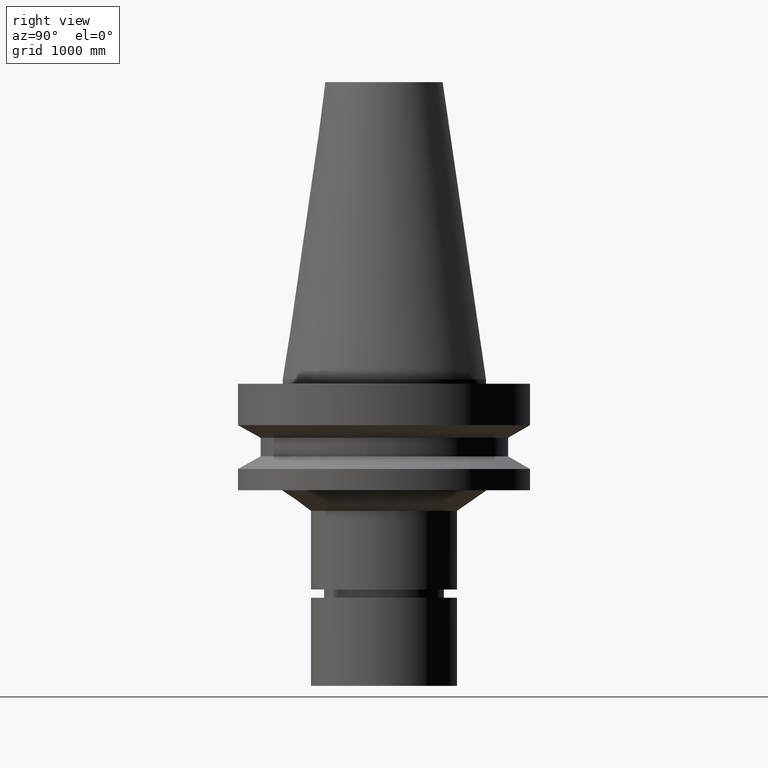
[diagram: clean part render]
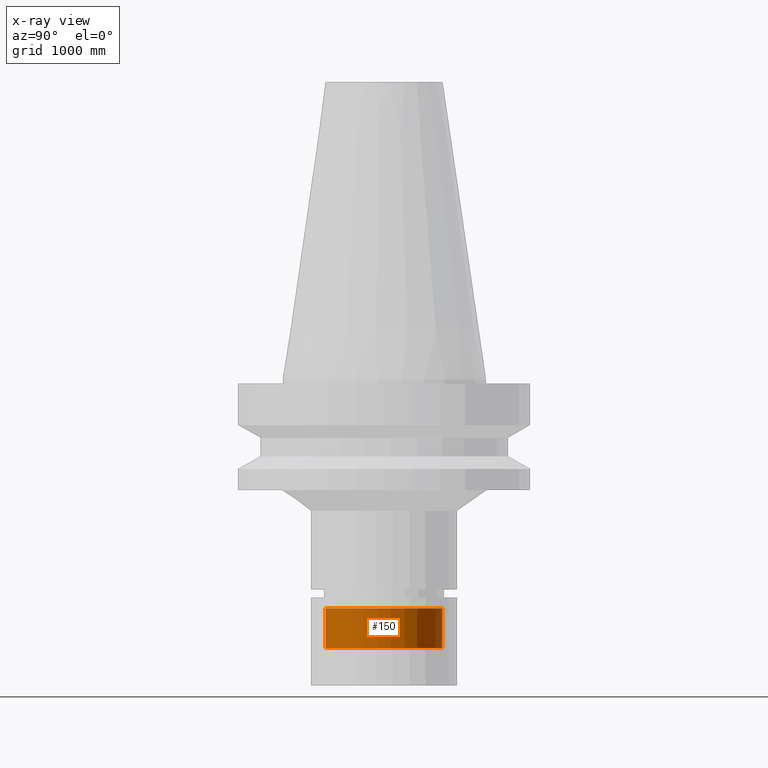
[diagram: x-ray — body ghosted, one internal face saturated and labeled with its STEP entity id]
A machine part, right view, then the same camera in x-ray: the body is ghosted and one INTERNAL B-rep face — a face not visible from any outside direction — is saturated and labeled: STEP entity #150.
In plain terms, the highlighted cylindrical surface (bore or boss wall) has radius 508 mm, axis along (-0, 0, 1).
Its self-contained STEP definition (entity closure, byte-faithful):
#79=EDGE_CURVE('Unnamed[1]',#207,#207,#208,.T.);
#110=EDGE_CURVE('Unnamed[1]',#256,#256,#257,.T.);
#150=ADVANCED_FACE('Unnamed[1]',(#317,#318),#319,.T.);
#207=VERTEX_POINT('',#385);
#208=CIRCLE('',#386,20.0);
#256=VERTEX_POINT('',#446);
#257=CIRCLE('',#447,20.0000000000001);
#317=FACE_BOUND('',#521,.T.);
#318=FACE_BOUND('',#522,.T.);
#319=CYLINDRICAL_SURFACE('',#523,20.0);
#385=CARTESIAN_POINT('',(4.80674833499597E-015,20.0,-78.5001575693926));
#386=AXIS2_PLACEMENT_3D('',#586,#587,#588);
#446=CARTESIAN_POINT('',(5.63917667973277E-015,20.0000000000001,-92.0947441116734));
#447=AXIS2_PLACEMENT_3D('',#642,#643,#644);
#521=EDGE_LOOP('',(#709));
#522=EDGE_LOOP('',(#710));
#523=AXIS2_PLACEMENT_3D('',#711,#712,#713);
#586=CARTESIAN_POINT('',(4.80674833499597E-015,1.29851248607178E-014,-78.5001575693926));
#587=DIRECTION('',(-6.12323399573676E-017,1.40684069965566E-019,1.0));
#588=DIRECTION('',(-4.81853831596983E-033,1.0,-1.40684069965566E-019));
#642=CARTESIAN_POINT('',(5.63917667973277E-015,1.29832123189539E-014,-92.0947441116734));
#643=DIRECTION('',(-6.12323399573677E-017,1.40684069965566E-019,1.0));
#644=DIRECTION('',(-4.8185383159743E-033,1.0,-1.40684069965566E-019));
#709=ORIENTED_EDGE('',*,*,#79,.F.);
#710=ORIENTED_EDGE('',*,*,#110,.T.);
#711=CARTESIAN_POINT('',(5.22296250736437E-015,1.29841685898358E-014,-85.297450840533));
#712=DIRECTION('',(-6.12323399573676E-017,1.40684069965566E-019,1.0));
#713=DIRECTION('',(-4.8185383159743E-033,1.0,-1.40684069965566E-019));